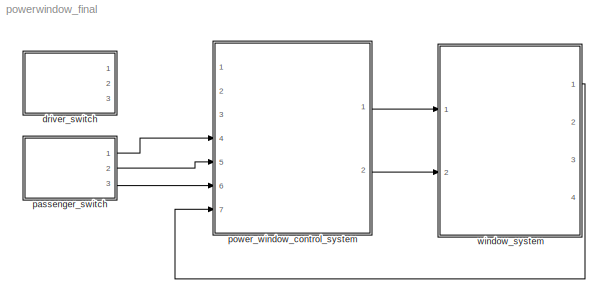
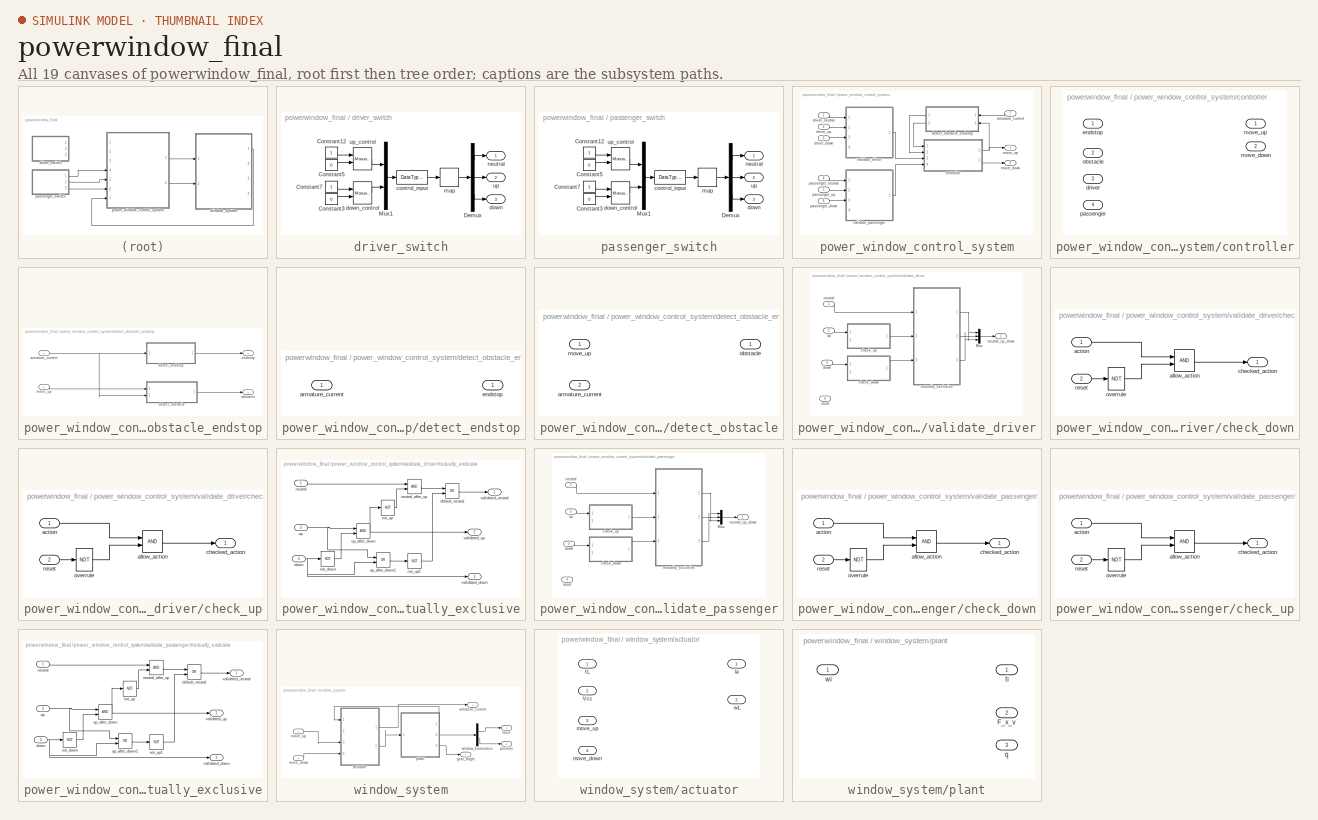
[diagram: thumbnail index - all 19 canvases of the model, root first then tree order]
MODEL powerwindow_final
KIND model
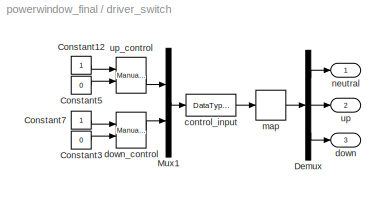
BLOCK [SubSystem] driver_switch
  Ports = [0, 3]
  RequestExecContextInheritance = off
  SID = 18
BLOCK [Constant] driver_switch/Constant12
  SID = 19
BLOCK [Constant] driver_switch/Constant3
  SID = 20
  Value = 0
BLOCK [Constant] driver_switch/Constant5
  SID = 21
  Value = 0
BLOCK [Constant] driver_switch/Constant7
  SID = 22
BLOCK [Demux] driver_switch/Demux
  Outputs = 3
  Ports = [1, 3]
  SID = 23
BLOCK [Mux] driver_switch/Mux1
  DisplayOption = bar
  Inputs = 2
  Ports = [2, 1]
  SID = 24
BLOCK [DataTypeConversion] driver_switch/control_input
  OutDataTypeStr = boolean
  SID = 25
BLOCK [Outport] driver_switch/down
  IconDisplay = Port number
  Port = 3
  SID = 31
BLOCK [Reference] driver_switch/down_control  REF=simulink/Signal\nRouting/Manual Switch
  Ports = [2, 1]
  SID = 26
  SourceBlock = simulink/Signal\nRouting/Manual Switch
  SourceType = Manual Switch
  action = 0
  sw = 0
  varsize = off
BLOCK [CombinatorialLogic] driver_switch/map
  SID = 27
  TruthTable = [1 0 0;0 0 1;0 1 0;1 0 0]
BLOCK [Outport] driver_switch/neutral
  IconDisplay = Port number
  SID = 29
BLOCK [Outport] driver_switch/up
  IconDisplay = Port number
  Port = 2
  SID = 30
BLOCK [Reference] driver_switch/up_control  REF=simulink/Signal\nRouting/Manual Switch
  Ports = [2, 1]
  SID = 28
  SourceBlock = simulink/Signal\nRouting/Manual Switch
  SourceType = Manual Switch
  action = 0
  sw = 1
  varsize = off
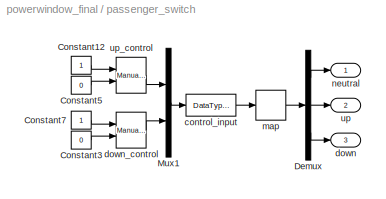
BLOCK [SubSystem] passenger_switch
  Ports = [0, 3]
  RequestExecContextInheritance = off
  SID = 32
BLOCK [Constant] passenger_switch/Constant12
  SID = 33
BLOCK [Constant] passenger_switch/Constant3
  SID = 34
  Value = 0
BLOCK [Constant] passenger_switch/Constant5
  SID = 35
  Value = 0
BLOCK [Constant] passenger_switch/Constant7
  SID = 36
BLOCK [Demux] passenger_switch/Demux
  Outputs = 3
  Ports = [1, 3]
  SID = 37
BLOCK [Mux] passenger_switch/Mux1
  DisplayOption = bar
  Inputs = 2
  Ports = [2, 1]
  SID = 38
BLOCK [DataTypeConversion] passenger_switch/control_input
  OutDataTypeStr = boolean
  SID = 39
BLOCK [Outport] passenger_switch/down
  IconDisplay = Port number
  Port = 3
  SID = 45
BLOCK [Reference] passenger_switch/down_control  REF=simulink/Signal\nRouting/Manual Switch
  Ports = [2, 1]
  SID = 40
  SourceBlock = simulink/Signal\nRouting/Manual Switch
  SourceType = Manual Switch
  action = 0
  sw = 0
  varsize = off
BLOCK [CombinatorialLogic] passenger_switch/map
  SID = 41
  TruthTable = [1 0 0;0 0 1;0 1 0;1 0 0]
BLOCK [Outport] passenger_switch/neutral
  IconDisplay = Port number
  SID = 43
BLOCK [Outport] passenger_switch/up
  IconDisplay = Port number
  Port = 2
  SID = 44
BLOCK [Reference] passenger_switch/up_control  REF=simulink/Signal\nRouting/Manual Switch
  Ports = [2, 1]
  SID = 42
  SourceBlock = simulink/Signal\nRouting/Manual Switch
  SourceType = Manual Switch
  action = 0
  sw = 0
  varsize = off
BLOCK [SubSystem] power_window_control_system
  Ports = [7, 2]
  RequestExecContextInheritance = off
  SID = 46
BLOCK [Inport] power_window_control_system/armature_current
  IconDisplay = Port number
  Port = 7
  SID = 53
BLOCK [SubSystem] power_window_control_system/controller
  Ports = [4, 2]
  RequestExecContextInheritance = off
  SID = 145
BLOCK [Inport] power_window_control_system/controller/driver
  IconDisplay = Port number
  Port = 3
  SID = 148
BLOCK [Inport] power_window_control_system/controller/endstop
  IconDisplay = Port number
  SID = 146
BLOCK [Outport] power_window_control_system/controller/move_down
  IconDisplay = Port number
  Port = 2
  SID = 151
BLOCK [Outport] power_window_control_system/controller/move_up
  IconDisplay = Port number
  SID = 150
BLOCK [Inport] power_window_control_system/controller/obstacle
  IconDisplay = Port number
  Port = 2
  SID = 147
BLOCK [Inport] power_window_control_system/controller/passenger
  IconDisplay = Port number
  Port = 4
  SID = 149
BLOCK [SubSystem] power_window_control_system/detect_obstacle_endstop
  Ports = [2, 2]
  RequestExecContextInheritance = off
  SID = 152
BLOCK [Inport] power_window_control_system/detect_obstacle_endstop/armature_current
  IconDisplay = Port number
  SID = 153
BLOCK [SubSystem] power_window_control_system/detect_obstacle_endstop/detect_endstop
  Ports = [1, 1]
  RequestExecContextInheritance = off
  SID = 155
BLOCK [Inport] power_window_control_system/detect_obstacle_endstop/detect_endstop/armature_current
  IconDisplay = Port number
  SID = 156
BLOCK [Outport] power_window_control_system/detect_obstacle_endstop/detect_endstop/endstop
  IconDisplay = Port number
  SID = 157
BLOCK [SubSystem] power_window_control_system/detect_obstacle_endstop/detect_obstacle
  Ports = [2, 1]
  RequestExecContextInheritance = off
  SID = 158
BLOCK [Inport] power_window_control_system/detect_obstacle_endstop/detect_obstacle/armature_current
  IconDisplay = Port number
  Port = 2
  SID = 160
BLOCK [Inport] power_window_control_system/detect_obstacle_endstop/detect_obstacle/move_up
  IconDisplay = Port number
  SID = 159
BLOCK [Outport] power_window_control_system/detect_obstacle_endstop/detect_obstacle/obstacle
  IconDisplay = Port number
  SID = 161
BLOCK [Outport] power_window_control_system/detect_obstacle_endstop/endstop
  IconDisplay = Port number
  Port = 2
  SID = 166
BLOCK [Inport] power_window_control_system/detect_obstacle_endstop/move_up
  IconDisplay = Port number
  Port = 2
  SID = 154
BLOCK [Outport] power_window_control_system/detect_obstacle_endstop/obstacle
  IconDisplay = Port number
  SID = 165
BLOCK [Inport] power_window_control_system/driver_down
  IconDisplay = Port number
  Port = 3
  SID = 49
BLOCK [Inport] power_window_control_system/driver_neutral
  IconDisplay = Port number
  SID = 47
BLOCK [Inport] power_window_control_system/driver_up
  IconDisplay = Port number
  Port = 2
  SID = 48
BLOCK [Outport] power_window_control_system/move_down
  IconDisplay = Port number
  Port = 2
  SID = 143
BLOCK [Outport] power_window_control_system/move_up
  IconDisplay = Port number
  SID = 142
BLOCK [Inport] power_window_control_system/passenger_down
  IconDisplay = Port number
  Port = 6
  SID = 52
BLOCK [Inport] power_window_control_system/passenger_neutral
  IconDisplay = Port number
  Port = 4
  SID = 50
BLOCK [Inport] power_window_control_system/passenger_up
  IconDisplay = Port number
  Port = 5
  SID = 51
BLOCK [SubSystem] power_window_control_system/validate_driver
  Ports = [4, 1]
  RequestExecContextInheritance = off
  SID = 76
BLOCK [Mux] power_window_control_system/validate_driver/Mux
  DisplayOption = bar
  Inputs = 3
  Ports = [3, 1]
  SID = 81
BLOCK [SubSystem] power_window_control_system/validate_driver/check_down
  Ports = [2, 1]
  RequestExecContextInheritance = off
  SID = 82
BLOCK [Inport] power_window_control_system/validate_driver/check_down/action
  IconDisplay = Port number
  SID = 83
BLOCK [Logic] power_window_control_system/validate_driver/check_down/allow_action
  Ports = [2, 1]
  SID = 85
BLOCK [Outport] power_window_control_system/validate_driver/check_down/checked_action
  IconDisplay = Port number
  SID = 87
BLOCK [Logic] power_window_control_system/validate_driver/check_down/overrule
  Operator = NOT
  Ports = [1, 1]
  SID = 86
BLOCK [Inport] power_window_control_system/validate_driver/check_down/reset
  IconDisplay = Port number
  Port = 2
  SID = 84
BLOCK [SubSystem] power_window_control_system/validate_driver/check_up
  Ports = [2, 1]
  RequestExecContextInheritance = off
  SID = 88
BLOCK [Inport] power_window_control_system/validate_driver/check_up/action
  IconDisplay = Port number
  SID = 89
BLOCK [Logic] power_window_control_system/validate_driver/check_up/allow_action
  Ports = [2, 1]
  SID = 91
BLOCK [Outport] power_window_control_system/validate_driver/check_up/checked_action
  IconDisplay = Port number
  SID = 93
BLOCK [Logic] power_window_control_system/validate_driver/check_up/overrule
  Operator = NOT
  Ports = [1, 1]
  SID = 92
BLOCK [Inport] power_window_control_system/validate_driver/check_up/reset
  IconDisplay = Port number
  Port = 2
  SID = 90
BLOCK [Inport] power_window_control_system/validate_driver/down
  IconDisplay = Port number
  Port = 3
  SID = 79
BLOCK [SubSystem] power_window_control_system/validate_driver/mutually_exclusive
  Ports = [3, 3]
  RequestExecContextInheritance = off
  SID = 94
BLOCK [Logic] power_window_control_system/validate_driver/mutually_exclusive/default_neutral
  Operator = OR
  Ports = [2, 1]
  SID = 98
BLOCK [Inport] power_window_control_system/validate_driver/mutually_exclusive/down
  IconDisplay = Port number
  Port = 3
  SID = 97
BLOCK [Inport] power_window_control_system/validate_driver/mutually_exclusive/neutral
  IconDisplay = Port number
  SID = 95
BLOCK [Logic] power_window_control_system/validate_driver/mutually_exclusive/neutral_after_up
  Ports = [2, 1]
  SID = 99
BLOCK [Logic] power_window_control_system/validate_driver/mutually_exclusive/not_down
  Operator = NOT
  Ports = [1, 1]
  SID = 100
BLOCK [Logic] power_window_control_system/validate_driver/mutually_exclusive/not_up
  Operator = NOT
  Ports = [1, 1]
  SID = 101
BLOCK [Logic] power_window_control_system/validate_driver/mutually_exclusive/not_up1
  Operator = NOT
  Ports = [1, 1]
  SID = 102
BLOCK [Inport] power_window_control_system/validate_driver/mutually_exclusive/up
  IconDisplay = Port number
  Port = 2
  SID = 96
BLOCK [Logic] power_window_control_system/validate_driver/mutually_exclusive/up_after_down
  Ports = [2, 1]
  SID = 103
BLOCK [Logic] power_window_control_system/validate_driver/mutually_exclusive/up_after_down1
  Operator = OR
  Ports = [2, 1]
  SID = 104
BLOCK [Outport] power_window_control_system/validate_driver/mutually_exclusive/validated_down
  IconDisplay = Port number
  Port = 3
  SID = 107
BLOCK [Outport] power_window_control_system/validate_driver/mutually_exclusive/validated_neutral
  IconDisplay = Port number
  SID = 105
BLOCK [Outport] power_window_control_system/validate_driver/mutually_exclusive/validated_up
  IconDisplay = Port number
  Port = 2
  SID = 106
BLOCK [Inport] power_window_control_system/validate_driver/neutral
  IconDisplay = Port number
  SID = 77
BLOCK [Outport] power_window_control_system/validate_driver/neutral_up_down
  IconDisplay = Port number
  SID = 108
BLOCK [Inport] power_window_control_system/validate_driver/reset
  IconDisplay = Port number
  Port = 4
  SID = 80
BLOCK [Inport] power_window_control_system/validate_driver/up
  IconDisplay = Port number
  Port = 2
  SID = 78
BLOCK [SubSystem] power_window_control_system/validate_passenger
  Ports = [4, 1]
  RequestExecContextInheritance = off
  SID = 109
BLOCK [Mux] power_window_control_system/validate_passenger/Mux
  DisplayOption = bar
  Inputs = 3
  Ports = [3, 1]
  SID = 114
BLOCK [SubSystem] power_window_control_system/validate_passenger/check_down
  Ports = [2, 1]
  RequestExecContextInheritance = off
  SID = 115
BLOCK [Inport] power_window_control_system/validate_passenger/check_down/action
  IconDisplay = Port number
  SID = 116
BLOCK [Logic] power_window_control_system/validate_passenger/check_down/allow_action
  Ports = [2, 1]
  SID = 118
BLOCK [Outport] power_window_control_system/validate_passenger/check_down/checked_action
  IconDisplay = Port number
  SID = 120
BLOCK [Logic] power_window_control_system/validate_passenger/check_down/overrule
  Operator = NOT
  Ports = [1, 1]
  SID = 119
BLOCK [Inport] power_window_control_system/validate_passenger/check_down/reset
  IconDisplay = Port number
  Port = 2
  SID = 117
BLOCK [SubSystem] power_window_control_system/validate_passenger/check_up
  Ports = [2, 1]
  RequestExecContextInheritance = off
  SID = 121
BLOCK [Inport] power_window_control_system/validate_passenger/check_up/action
  IconDisplay = Port number
  SID = 122
BLOCK [Logic] power_window_control_system/validate_passenger/check_up/allow_action
  Ports = [2, 1]
  SID = 124
BLOCK [Outport] power_window_control_system/validate_passenger/check_up/checked_action
  IconDisplay = Port number
  SID = 126
BLOCK [Logic] power_window_control_system/validate_passenger/check_up/overrule
  Operator = NOT
  Ports = [1, 1]
  SID = 125
BLOCK [Inport] power_window_control_system/validate_passenger/check_up/reset
  IconDisplay = Port number
  Port = 2
  SID = 123
BLOCK [Inport] power_window_control_system/validate_passenger/down
  IconDisplay = Port number
  Port = 3
  SID = 112
BLOCK [SubSystem] power_window_control_system/validate_passenger/mutually_exclusive
  Ports = [3, 3]
  RequestExecContextInheritance = off
  SID = 127
BLOCK [Logic] power_window_control_system/validate_passenger/mutually_exclusive/default_neutral
  Operator = OR
  Ports = [2, 1]
  SID = 131
BLOCK [Inport] power_window_control_system/validate_passenger/mutually_exclusive/down
  IconDisplay = Port number
  Port = 3
  SID = 130
BLOCK [Inport] power_window_control_system/validate_passenger/mutually_exclusive/neutral
  IconDisplay = Port number
  SID = 128
BLOCK [Logic] power_window_control_system/validate_passenger/mutually_exclusive/neutral_after_up
  Ports = [2, 1]
  SID = 132
BLOCK [Logic] power_window_control_system/validate_passenger/mutually_exclusive/not_down
  Operator = NOT
  Ports = [1, 1]
  SID = 133
BLOCK [Logic] power_window_control_system/validate_passenger/mutually_exclusive/not_up
  Operator = NOT
  Ports = [1, 1]
  SID = 134
BLOCK [Logic] power_window_control_system/validate_passenger/mutually_exclusive/not_up1
  Operator = NOT
  Ports = [1, 1]
  SID = 135
BLOCK [Inport] power_window_control_system/validate_passenger/mutually_exclusive/up
  IconDisplay = Port number
  Port = 2
  SID = 129
BLOCK [Logic] power_window_control_system/validate_passenger/mutually_exclusive/up_after_down
  Ports = [2, 1]
  SID = 136
BLOCK [Logic] power_window_control_system/validate_passenger/mutually_exclusive/up_after_down1
  Operator = OR
  Ports = [2, 1]
  SID = 137
BLOCK [Outport] power_window_control_system/validate_passenger/mutually_exclusive/validated_down
  IconDisplay = Port number
  Port = 3
  SID = 140
BLOCK [Outport] power_window_control_system/validate_passenger/mutually_exclusive/validated_neutral
  IconDisplay = Port number
  SID = 138
BLOCK [Outport] power_window_control_system/validate_passenger/mutually_exclusive/validated_up
  IconDisplay = Port number
  Port = 2
  SID = 139
BLOCK [Inport] power_window_control_system/validate_passenger/neutral
  IconDisplay = Port number
  SID = 110
BLOCK [Outport] power_window_control_system/validate_passenger/neutral_up_down
  IconDisplay = Port number
  SID = 141
BLOCK [Inport] power_window_control_system/validate_passenger/reset
  IconDisplay = Port number
  Port = 4
  SID = 113
BLOCK [Inport] power_window_control_system/validate_passenger/up
  IconDisplay = Port number
  Port = 2
  SID = 111
BLOCK [SubSystem] window_system
  Ports = [2, 4]
  RequestExecContextInheritance = off
  SID = 167
BLOCK [SubSystem] window_system/actuator
  Ports = [4, 2]
  RequestExecContextInheritance = off
  SID = 170
BLOCK [Inport] window_system/actuator/Vcc
  IconDisplay = Port number
  Port = 2
  SID = 172
BLOCK [Outport] window_system/actuator/la
  IconDisplay = Port number
  SID = 175
BLOCK [Inport] window_system/actuator/move_down
  IconDisplay = Port number
  Port = 4
  SID = 174
BLOCK [Inport] window_system/actuator/move_up
  IconDisplay = Port number
  Port = 3
  SID = 173
BLOCK [Inport] window_system/actuator/tL
  IconDisplay = Port number
  SID = 171
BLOCK [Outport] window_system/actuator/wL
  IconDisplay = Port number
  Port = 2
  SID = 176
BLOCK [Outport] window_system/armature_current
  IconDisplay = Port number
  SID = 183
BLOCK [Outport] window_system/force
  IconDisplay = Port number
  Port = 2
  SID = 184
BLOCK [Outport] window_system/gear_angle
  IconDisplay = Port number
  Port = 4
  SID = 186
BLOCK [Inport] window_system/move_down
  IconDisplay = Port number
  Port = 2
  SID = 169
BLOCK [Inport] window_system/move_up
  IconDisplay = Port number
  SID = 168
BLOCK [SubSystem] window_system/plant
  Ports = [1, 3]
  RequestExecContextInheritance = off
  SID = 177
BLOCK [Outport] window_system/plant/F_x_v
  IconDisplay = Port number
  Port = 2
  SID = 180
BLOCK [Outport] window_system/plant/q
  IconDisplay = Port number
  Port = 3
  SID = 181
BLOCK [Outport] window_system/plant/ti
  IconDisplay = Port number
  SID = 179
BLOCK [Inport] window_system/plant/wi
  IconDisplay = Port number
  SID = 178
BLOCK [Outport] window_system/position
  IconDisplay = Port number
  Port = 3
  SID = 185
BLOCK [Demux] window_system/window_kinematics
  Outputs = [1,1,2,1,4]
  Ports = [1, 5]
  SID = 182
LINE driver_switch/Constant12:1 -> driver_switch/up_control:1
LINE driver_switch/Constant3:1 -> driver_switch/down_control:2
LINE driver_switch/Constant5:1 -> driver_switch/up_control:2
LINE driver_switch/Constant7:1 -> driver_switch/down_control:1
LINE driver_switch/Demux:1 -> driver_switch/neutral:1
LINE driver_switch/Demux:2 -> driver_switch/up:1
LINE driver_switch/Demux:3 -> driver_switch/down:1
LINE driver_switch/Mux1:1 -> driver_switch/control_input:1
LINE driver_switch/control_input:1 -> driver_switch/map:1
LINE driver_switch/down_control:1 -> driver_switch/Mux1:2
LINE driver_switch/map:1 -> driver_switch/Demux:1
LINE driver_switch/up_control:1 -> driver_switch/Mux1:1
LINE passenger_switch/Constant12:1 -> passenger_switch/up_control:1
LINE passenger_switch/Constant3:1 -> passenger_switch/down_control:2
LINE passenger_switch/Constant5:1 -> passenger_switch/up_control:2
LINE passenger_switch/Constant7:1 -> passenger_switch/down_control:1
LINE passenger_switch/Demux:1 -> passenger_switch/neutral:1
LINE passenger_switch/Demux:2 -> passenger_switch/up:1
LINE passenger_switch/Demux:3 -> passenger_switch/down:1
LINE passenger_switch/Mux1:1 -> passenger_switch/control_input:1
LINE passenger_switch/control_input:1 -> passenger_switch/map:1
LINE passenger_switch/down_control:1 -> passenger_switch/Mux1:2
LINE passenger_switch/map:1 -> passenger_switch/Demux:1
LINE passenger_switch/up_control:1 -> passenger_switch/Mux1:1
LINE passenger_switch:1 -> power_window_control_system:4
LINE passenger_switch:2 -> power_window_control_system:5
LINE passenger_switch:3 -> power_window_control_system:6
LINE power_window_control_system/armature_current:1 -> power_window_control_system/detect_obstacle_endstop:1
NET power_window_control_system/controller:1 -> power_window_control_system/detect_obstacle_endstop:2, power_window_control_system/move_up:1
LINE power_window_control_system/controller:2 -> power_window_control_system/move_down:1
NET power_window_control_system/detect_obstacle_endstop/armature_current:1 -> power_window_control_system/detect_obstacle_endstop/detect_endstop:1, power_window_control_system/detect_obstacle_endstop/detect_obstacle:2
LINE power_window_control_system/detect_obstacle_endstop/detect_endstop:1 -> power_window_control_system/detect_obstacle_endstop/endstop:1
LINE power_window_control_system/detect_obstacle_endstop/detect_obstacle:1 -> power_window_control_system/detect_obstacle_endstop/obstacle:1
LINE power_window_control_system/detect_obstacle_endstop/move_up:1 -> power_window_control_system/detect_obstacle_endstop/detect_obstacle:1
LINE power_window_control_system/detect_obstacle_endstop:1 -> power_window_control_system/controller:2
LINE power_window_control_system/detect_obstacle_endstop:2 -> power_window_control_system/controller:1
LINE power_window_control_system/driver_down:1 -> power_window_control_system/validate_driver:3
LINE power_window_control_system/driver_neutral:1 -> power_window_control_system/validate_driver:1
LINE power_window_control_system/driver_up:1 -> power_window_control_system/validate_driver:2
LINE power_window_control_system/passenger_down:1 -> power_window_control_system/validate_passenger:3
LINE power_window_control_system/passenger_neutral:1 -> power_window_control_system/validate_passenger:1
LINE power_window_control_system/passenger_up:1 -> power_window_control_system/validate_passenger:2
LINE power_window_control_system/validate_driver/Mux:1 -> power_window_control_system/validate_driver/neutral_up_down:1
LINE power_window_control_system/validate_driver/check_down/action:1 -> power_window_control_system/validate_driver/check_down/allow_action:1
LINE power_window_control_system/validate_driver/check_down/allow_action:1 -> power_window_control_system/validate_driver/check_down/checked_action:1
LINE power_window_control_system/validate_driver/check_down/overrule:1 -> power_window_control_system/validate_driver/check_down/allow_action:2
LINE power_window_control_system/validate_driver/check_down/reset:1 -> power_window_control_system/validate_driver/check_down/overrule:1
LINE power_window_control_system/validate_driver/check_down:1 -> power_window_control_system/validate_driver/mutually_exclusive:3
LINE power_window_control_system/validate_driver/check_up/action:1 -> power_window_control_system/validate_driver/check_up/allow_action:1
LINE power_window_control_system/validate_driver/check_up/allow_action:1 -> power_window_control_system/validate_driver/check_up/checked_action:1
LINE power_window_control_system/validate_driver/check_up/overrule:1 -> power_window_control_system/validate_driver/check_up/allow_action:2
LINE power_window_control_system/validate_driver/check_up/reset:1 -> power_window_control_system/validate_driver/check_up/overrule:1
LINE power_window_control_system/validate_driver/check_up:1 -> power_window_control_system/validate_driver/mutually_exclusive:2
LINE power_window_control_system/validate_driver/down:1 -> power_window_control_system/validate_driver/check_down:1
LINE power_window_control_system/validate_driver/mutually_exclusive/default_neutral:1 -> power_window_control_system/validate_driver/mutually_exclusive/validated_neutral:1
NET power_window_control_system/validate_driver/mutually_exclusive/down:1 -> power_window_control_system/validate_driver/mutually_exclusive/not_down:1, power_window_control_system/validate_driver/mutually_exclusive/up_after_down1:2, power_window_control_system/validate_driver/mutually_exclusive/validated_down:1
LINE power_window_control_system/validate_driver/mutually_exclusive/neutral:1 -> power_window_control_system/validate_driver/mutually_exclusive/neutral_after_up:1
LINE power_window_control_system/validate_driver/mutually_exclusive/neutral_after_up:1 -> power_window_control_system/validate_driver/mutually_exclusive/default_neutral:1
LINE power_window_control_system/validate_driver/mutually_exclusive/not_down:1 -> power_window_control_system/validate_driver/mutually_exclusive/up_after_down:2
LINE power_window_control_system/validate_driver/mutually_exclusive/not_up1:1 -> power_window_control_system/validate_driver/mutually_exclusive/default_neutral:2
LINE power_window_control_system/validate_driver/mutually_exclusive/not_up:1 -> power_window_control_system/validate_driver/mutually_exclusive/neutral_after_up:2
NET power_window_control_system/validate_driver/mutually_exclusive/up:1 -> power_window_control_system/validate_driver/mutually_exclusive/up_after_down1:1, power_window_control_system/validate_driver/mutually_exclusive/up_after_down:1
LINE power_window_control_system/validate_driver/mutually_exclusive/up_after_down1:1 -> power_window_control_system/validate_driver/mutually_exclusive/not_up1:1
NET power_window_control_system/validate_driver/mutually_exclusive/up_after_down:1 -> power_window_control_system/validate_driver/mutually_exclusive/not_up:1, power_window_control_system/validate_driver/mutually_exclusive/validated_up:1
LINE power_window_control_system/validate_driver/mutually_exclusive:1 -> power_window_control_system/validate_driver/Mux:1
LINE power_window_control_system/validate_driver/mutually_exclusive:2 -> power_window_control_system/validate_driver/Mux:2
LINE power_window_control_system/validate_driver/mutually_exclusive:3 -> power_window_control_system/validate_driver/Mux:3
LINE power_window_control_system/validate_driver/neutral:1 -> power_window_control_system/validate_driver/mutually_exclusive:1
LINE power_window_control_system/validate_driver/up:1 -> power_window_control_system/validate_driver/check_up:1
LINE power_window_control_system/validate_driver:1 -> power_window_control_system/controller:3
LINE power_window_control_system/validate_passenger/Mux:1 -> power_window_control_system/validate_passenger/neutral_up_down:1
LINE power_window_control_system/validate_passenger/check_down/action:1 -> power_window_control_system/validate_passenger/check_down/allow_action:1
LINE power_window_control_system/validate_passenger/check_down/allow_action:1 -> power_window_control_system/validate_passenger/check_down/checked_action:1
LINE power_window_control_system/validate_passenger/check_down/overrule:1 -> power_window_control_system/validate_passenger/check_down/allow_action:2
LINE power_window_control_system/validate_passenger/check_down/reset:1 -> power_window_control_system/validate_passenger/check_down/overrule:1
LINE power_window_control_system/validate_passenger/check_down:1 -> power_window_control_system/validate_passenger/mutually_exclusive:3
LINE power_window_control_system/validate_passenger/check_up/action:1 -> power_window_control_system/validate_passenger/check_up/allow_action:1
LINE power_window_control_system/validate_passenger/check_up/allow_action:1 -> power_window_control_system/validate_passenger/check_up/checked_action:1
LINE power_window_control_system/validate_passenger/check_up/overrule:1 -> power_window_control_system/validate_passenger/check_up/allow_action:2
LINE power_window_control_system/validate_passenger/check_up/reset:1 -> power_window_control_system/validate_passenger/check_up/overrule:1
LINE power_window_control_system/validate_passenger/check_up:1 -> power_window_control_system/validate_passenger/mutually_exclusive:2
LINE power_window_control_system/validate_passenger/down:1 -> power_window_control_system/validate_passenger/check_down:1
LINE power_window_control_system/validate_passenger/mutually_exclusive/default_neutral:1 -> power_window_control_system/validate_passenger/mutually_exclusive/validated_neutral:1
NET power_window_control_system/validate_passenger/mutually_exclusive/down:1 -> power_window_control_system/validate_passenger/mutually_exclusive/not_down:1, power_window_control_system/validate_passenger/mutually_exclusive/up_after_down1:2, power_window_control_system/validate_passenger/mutually_exclusive/validated_down:1
LINE power_window_control_system/validate_passenger/mutually_exclusive/neutral:1 -> power_window_control_system/validate_passenger/mutually_exclusive/neutral_after_up:1
LINE power_window_control_system/validate_passenger/mutually_exclusive/neutral_after_up:1 -> power_window_control_system/validate_passenger/mutually_exclusive/default_neutral:1
LINE power_window_control_system/validate_passenger/mutually_exclusive/not_down:1 -> power_window_control_system/validate_passenger/mutually_exclusive/up_after_down:2
LINE power_window_control_system/validate_passenger/mutually_exclusive/not_up1:1 -> power_window_control_system/validate_passenger/mutually_exclusive/default_neutral:2
LINE power_window_control_system/validate_passenger/mutually_exclusive/not_up:1 -> power_window_control_system/validate_passenger/mutually_exclusive/neutral_after_up:2
NET power_window_control_system/validate_passenger/mutually_exclusive/up:1 -> power_window_control_system/validate_passenger/mutually_exclusive/up_after_down1:1, power_window_control_system/validate_passenger/mutually_exclusive/up_after_down:1
LINE power_window_control_system/validate_passenger/mutually_exclusive/up_after_down1:1 -> power_window_control_system/validate_passenger/mutually_exclusive/not_up1:1
NET power_window_control_system/validate_passenger/mutually_exclusive/up_after_down:1 -> power_window_control_system/validate_passenger/mutually_exclusive/not_up:1, power_window_control_system/validate_passenger/mutually_exclusive/validated_up:1
LINE power_window_control_system/validate_passenger/mutually_exclusive:1 -> power_window_control_system/validate_passenger/Mux:1
LINE power_window_control_system/validate_passenger/mutually_exclusive:2 -> power_window_control_system/validate_passenger/Mux:2
LINE power_window_control_system/validate_passenger/mutually_exclusive:3 -> power_window_control_system/validate_passenger/Mux:3
LINE power_window_control_system/validate_passenger/neutral:1 -> power_window_control_system/validate_passenger/mutually_exclusive:1
LINE power_window_control_system/validate_passenger/up:1 -> power_window_control_system/validate_passenger/check_up:1
LINE power_window_control_system/validate_passenger:1 -> power_window_control_system/controller:4
LINE power_window_control_system:1 -> window_system:1
LINE power_window_control_system:2 -> window_system:2
LINE window_system/actuator:1 -> window_system/armature_current:1
LINE window_system/actuator:2 -> window_system/plant:1
LINE window_system/move_down:1 -> window_system/actuator:4
LINE window_system/move_up:1 -> window_system/actuator:3
LINE window_system/plant:1 -> window_system/actuator:1
LINE window_system/plant:2 -> window_system/window_kinematics:1
LINE window_system/plant:3 -> window_system/gear_angle:1
LINE window_system/window_kinematics:2 -> window_system/force:1
LINE window_system/window_kinematics:4 -> window_system/position:1
LINE window_system:1 -> power_window_control_system:7
note: NET lines group one-source signal fan-out (src -> all destinations, sorted); 1:1 wires keep LINE
